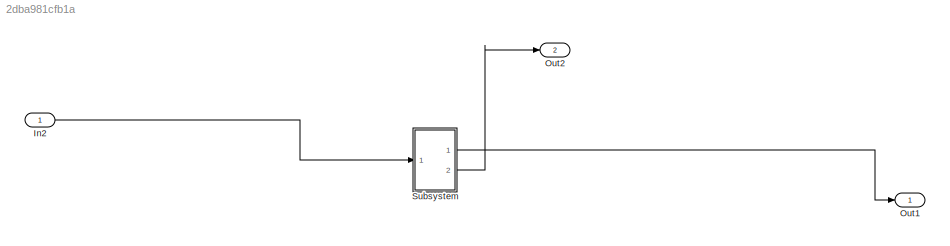
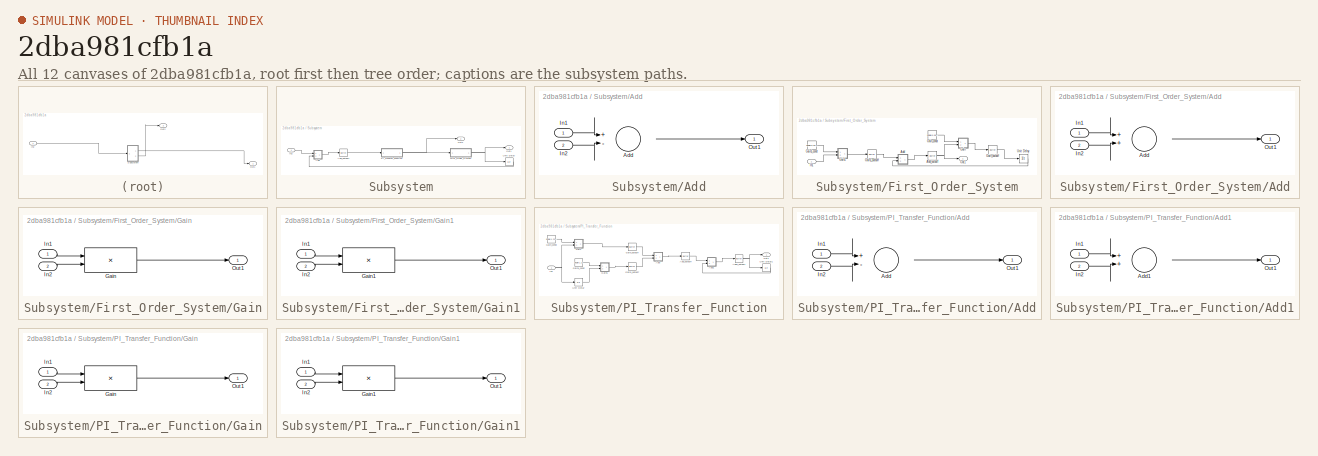
[diagram: thumbnail index - all 12 canvases of the model, root first then tree order]
MODEL slx_2dba981cfb1a
KIND model
CONFIG AbsTol = auto
CONFIG EnableMultiTasking = off
CONFIG FixedStep = auto
CONFIG MaxStep = auto
CONFIG MinStep = auto
CONFIG RelTol = 1e-3
CONFIG SampleTimeConstraint = Unconstrained
CONFIG SolverName = VariableStepAuto
CONFIG StartTime = 0.0
CONFIG StopTime = 10.0
BLOCK [Inport] In2
BLOCK [Outport] Out1
  SignalName = C
  VectorParamsAs1DForOutWhenUnconnected = off
BLOCK [Outport] Out2
  Port = 2
  SignalName = U
  VectorParamsAs1DForOutWhenUnconnected = off
BLOCK [SubSystem] Subsystem
  Ports = [1, 2]
  RequestExecContextInheritance = off
BLOCK [SubSystem] Subsystem/Add
  Ports = [2, 1]
  RequestExecContextInheritance = off
BLOCK [Sum] Subsystem/Add/Add
  Inputs = +-
  OutDataTypeStr = single
  Ports = [2, 1]
  SampleTime = 0.2
BLOCK [Inport] Subsystem/Add/In1
BLOCK [Inport] Subsystem/Add/In2
  Port = 2
BLOCK [Outport] Subsystem/Add/Out1
BLOCK [Reference] Subsystem/Add_outbuff  REF=hdlmdlgenlib/Buffer
  Ports = [1, 1]
  SourceBlock = hdlmdlgenlib/Buffer
  SourceProductBaseCode = SL
  SourceType = Buffer/Wire
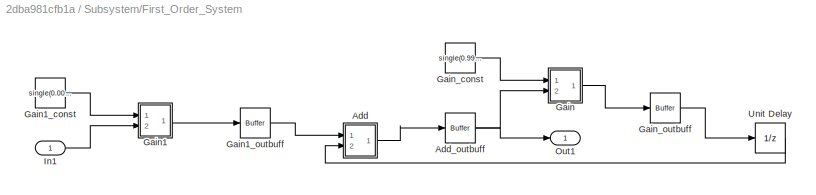
BLOCK [SubSystem] Subsystem/First_Order_System
  Ports = [1, 1]
  RequestExecContextInheritance = off
BLOCK [SubSystem] Subsystem/First_Order_System/Add
  Ports = [2, 1]
  RequestExecContextInheritance = off
BLOCK [Sum] Subsystem/First_Order_System/Add/Add
  OutDataTypeStr = single
  Ports = [2, 1]
  SampleTime = 0.2
BLOCK [Inport] Subsystem/First_Order_System/Add/In1
BLOCK [Inport] Subsystem/First_Order_System/Add/In2
  Port = 2
BLOCK [Outport] Subsystem/First_Order_System/Add/Out1
BLOCK [Reference] Subsystem/First_Order_System/Add_outbuff  REF=hdlmdlgenlib/Buffer
  Ports = [1, 1]
  SourceBlock = hdlmdlgenlib/Buffer
  SourceProductBaseCode = SL
  SourceType = Buffer/Wire
BLOCK [SubSystem] Subsystem/First_Order_System/Gain
  Ports = [2, 1]
  RequestExecContextInheritance = off
BLOCK [Product] Subsystem/First_Order_System/Gain/Gain
  Inputs = **
  OutDataTypeStr = single
  Ports = [2, 1]
  SampleTime = 0.2
BLOCK [Inport] Subsystem/First_Order_System/Gain/In1
BLOCK [Inport] Subsystem/First_Order_System/Gain/In2
  Port = 2
BLOCK [Outport] Subsystem/First_Order_System/Gain/Out1
BLOCK [SubSystem] Subsystem/First_Order_System/Gain1
  Ports = [2, 1]
  RequestExecContextInheritance = off
BLOCK [Product] Subsystem/First_Order_System/Gain1/Gain1
  Inputs = **
  OutDataTypeStr = single
  Ports = [2, 1]
  SampleTime = 0.2
BLOCK [Inport] Subsystem/First_Order_System/Gain1/In1
BLOCK [Inport] Subsystem/First_Order_System/Gain1/In2
  Port = 2
BLOCK [Outport] Subsystem/First_Order_System/Gain1/Out1
BLOCK [Constant] Subsystem/First_Order_System/Gain1_const
  OutDataTypeStr = single
  SampleTime = 0.2
  Value = single(0.009900989942252636)
BLOCK [Reference] Subsystem/First_Order_System/Gain1_outbuff  REF=hdlmdlgenlib/Buffer
  Ports = [1, 1]
  SourceBlock = hdlmdlgenlib/Buffer
  SourceProductBaseCode = SL
  SourceType = Buffer/Wire
BLOCK [Constant] Subsystem/First_Order_System/Gain_const
  OutDataTypeStr = single
  SampleTime = 0.2
  Value = single(0.9900990128517151)
BLOCK [Reference] Subsystem/First_Order_System/Gain_outbuff  REF=hdlmdlgenlib/Buffer
  Ports = [1, 1]
  SourceBlock = hdlmdlgenlib/Buffer
  SourceProductBaseCode = SL
  SourceType = Buffer/Wire
BLOCK [Inport] Subsystem/First_Order_System/In1
  OutDataTypeStr = single
  PortDimensions = 1
  SampleTime = 0.2
BLOCK [Outport] Subsystem/First_Order_System/Out1
  VectorParamsAs1DForOutWhenUnconnected = off
BLOCK [UnitDelay] Subsystem/First_Order_System/Unit Delay
  InitialCondition = single(0)
  SampleTime = 0.2
BLOCK [Inport] Subsystem/In2
  OutDataTypeStr = single
  PortDimensions = 1
  SampleTime = 0.2
BLOCK [Outport] Subsystem/Out1
  OutDataTypeStr = single
  VectorParamsAs1DForOutWhenUnconnected = off
BLOCK [Outport] Subsystem/Out2
  OutDataTypeStr = single
  Port = 2
  VectorParamsAs1DForOutWhenUnconnected = off
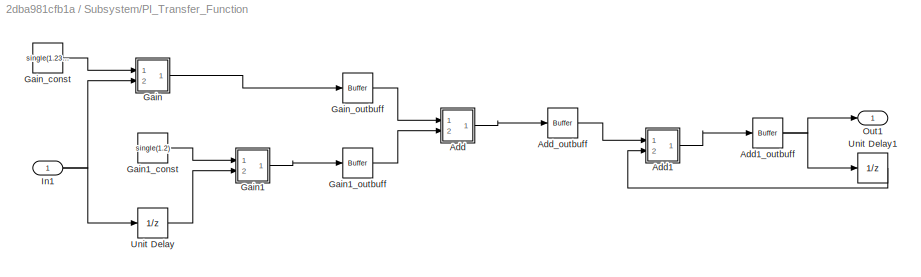
BLOCK [SubSystem] Subsystem/PI_Transfer_Function
  Ports = [1, 1]
  RequestExecContextInheritance = off
BLOCK [SubSystem] Subsystem/PI_Transfer_Function/Add
  Ports = [2, 1]
  RequestExecContextInheritance = off
BLOCK [Sum] Subsystem/PI_Transfer_Function/Add/Add
  Inputs = +-
  OutDataTypeStr = single
  Ports = [2, 1]
  SampleTime = 0.2
BLOCK [Inport] Subsystem/PI_Transfer_Function/Add/In1
BLOCK [Inport] Subsystem/PI_Transfer_Function/Add/In2
  Port = 2
BLOCK [Outport] Subsystem/PI_Transfer_Function/Add/Out1
BLOCK [SubSystem] Subsystem/PI_Transfer_Function/Add1
  Ports = [2, 1]
  RequestExecContextInheritance = off
BLOCK [Sum] Subsystem/PI_Transfer_Function/Add1/Add1
  OutDataTypeStr = single
  Ports = [2, 1]
  SampleTime = 0.2
BLOCK [Inport] Subsystem/PI_Transfer_Function/Add1/In1
BLOCK [Inport] Subsystem/PI_Transfer_Function/Add1/In2
  Port = 2
BLOCK [Outport] Subsystem/PI_Transfer_Function/Add1/Out1
BLOCK [Reference] Subsystem/PI_Transfer_Function/Add1_outbuff  REF=hdlmdlgenlib/Buffer
  Ports = [1, 1]
  SourceBlock = hdlmdlgenlib/Buffer
  SourceProductBaseCode = SL
  SourceType = Buffer/Wire
BLOCK [Reference] Subsystem/PI_Transfer_Function/Add_outbuff  REF=hdlmdlgenlib/Buffer
  Ports = [1, 1]
  SourceBlock = hdlmdlgenlib/Buffer
  SourceProductBaseCode = SL
  SourceType = Buffer/Wire
BLOCK [SubSystem] Subsystem/PI_Transfer_Function/Gain
  Ports = [2, 1]
  RequestExecContextInheritance = off
BLOCK [Product] Subsystem/PI_Transfer_Function/Gain/Gain
  Inputs = **
  OutDataTypeStr = single
  Ports = [2, 1]
  SampleTime = 0.2
BLOCK [Inport] Subsystem/PI_Transfer_Function/Gain/In1
BLOCK [Inport] Subsystem/PI_Transfer_Function/Gain/In2
  Port = 2
BLOCK [Outport] Subsystem/PI_Transfer_Function/Gain/Out1
BLOCK [SubSystem] Subsystem/PI_Transfer_Function/Gain1
  Ports = [2, 1]
  RequestExecContextInheritance = off
BLOCK [Product] Subsystem/PI_Transfer_Function/Gain1/Gain1
  Inputs = **
  OutDataTypeStr = single
  Ports = [2, 1]
  SampleTime = 0.2
BLOCK [Inport] Subsystem/PI_Transfer_Function/Gain1/In1
BLOCK [Inport] Subsystem/PI_Transfer_Function/Gain1/In2
  Port = 2
BLOCK [Outport] Subsystem/PI_Transfer_Function/Gain1/Out1
BLOCK [Constant] Subsystem/PI_Transfer_Function/Gain1_const
  OutDataTypeStr = single
  SampleTime = 0.2
  Value = single(1.2)
BLOCK [Reference] Subsystem/PI_Transfer_Function/Gain1_outbuff  REF=hdlmdlgenlib/Buffer
  Ports = [1, 1]
  SourceBlock = hdlmdlgenlib/Buffer
  SourceProductBaseCode = SL
  SourceType = Buffer/Wire
BLOCK [Constant] Subsystem/PI_Transfer_Function/Gain_const
  OutDataTypeStr = single
  SampleTime = 0.2
  Value = single(1.236)
BLOCK [Reference] Subsystem/PI_Transfer_Function/Gain_outbuff  REF=hdlmdlgenlib/Buffer
  Ports = [1, 1]
  SourceBlock = hdlmdlgenlib/Buffer
  SourceProductBaseCode = SL
  SourceType = Buffer/Wire
BLOCK [Inport] Subsystem/PI_Transfer_Function/In1
  OutDataTypeStr = single
  PortDimensions = 1
  SampleTime = 0.2
BLOCK [Outport] Subsystem/PI_Transfer_Function/Out1
  VectorParamsAs1DForOutWhenUnconnected = off
BLOCK [UnitDelay] Subsystem/PI_Transfer_Function/Unit Delay
  InitialCondition = single(0)
  SampleTime = 0.2
BLOCK [UnitDelay] Subsystem/PI_Transfer_Function/Unit Delay1
  InitialCondition = single(0)
  SampleTime = 0.2
BLOCK [UnitDelay] Subsystem/Unit Delay
  InitialCondition = single(0)
  SampleTime = 0.2
LINE In2:1 -> Subsystem:1
LINE Subsystem/Add/Add:1 -> Subsystem/Add/Out1:1
LINE Subsystem/Add/In1:1 -> Subsystem/Add/Add:1
LINE Subsystem/Add/In2:1 -> Subsystem/Add/Add:2
LINE Subsystem/Add:1 -> Subsystem/Add_outbuff:1
LINE Subsystem/Add_outbuff:1 -> Subsystem/PI_Transfer_Function:1
LINE Subsystem/First_Order_System/Add/Add:1 -> Subsystem/First_Order_System/Add/Out1:1
LINE Subsystem/First_Order_System/Add/In1:1 -> Subsystem/First_Order_System/Add/Add:1
LINE Subsystem/First_Order_System/Add/In2:1 -> Subsystem/First_Order_System/Add/Add:2
LINE Subsystem/First_Order_System/Add:1 -> Subsystem/First_Order_System/Add_outbuff:1
NET Subsystem/First_Order_System/Add_outbuff:1 -> Subsystem/First_Order_System/Gain:2, Subsystem/First_Order_System/Out1:1
LINE Subsystem/First_Order_System/Gain/Gain:1 -> Subsystem/First_Order_System/Gain/Out1:1
LINE Subsystem/First_Order_System/Gain/In1:1 -> Subsystem/First_Order_System/Gain/Gain:1
LINE Subsystem/First_Order_System/Gain/In2:1 -> Subsystem/First_Order_System/Gain/Gain:2
LINE Subsystem/First_Order_System/Gain1/Gain1:1 -> Subsystem/First_Order_System/Gain1/Out1:1
LINE Subsystem/First_Order_System/Gain1/In1:1 -> Subsystem/First_Order_System/Gain1/Gain1:1
LINE Subsystem/First_Order_System/Gain1/In2:1 -> Subsystem/First_Order_System/Gain1/Gain1:2
LINE Subsystem/First_Order_System/Gain1:1 -> Subsystem/First_Order_System/Gain1_outbuff:1
LINE Subsystem/First_Order_System/Gain1_const:1 -> Subsystem/First_Order_System/Gain1:1
LINE Subsystem/First_Order_System/Gain1_outbuff:1 -> Subsystem/First_Order_System/Add:1
LINE Subsystem/First_Order_System/Gain:1 -> Subsystem/First_Order_System/Gain_outbuff:1
LINE Subsystem/First_Order_System/Gain_const:1 -> Subsystem/First_Order_System/Gain:1
LINE Subsystem/First_Order_System/Gain_outbuff:1 -> Subsystem/First_Order_System/Unit Delay:1
LINE Subsystem/First_Order_System/In1:1 -> Subsystem/First_Order_System/Gain1:2
LINE Subsystem/First_Order_System/Unit Delay:1 -> Subsystem/First_Order_System/Add:2
NET Subsystem/First_Order_System:1 -> Subsystem/Out1:1, Subsystem/Unit Delay:1
LINE Subsystem/In2:1 -> Subsystem/Add:1
LINE Subsystem/PI_Transfer_Function/Add/Add:1 -> Subsystem/PI_Transfer_Function/Add/Out1:1
LINE Subsystem/PI_Transfer_Function/Add/In1:1 -> Subsystem/PI_Transfer_Function/Add/Add:1
LINE Subsystem/PI_Transfer_Function/Add/In2:1 -> Subsystem/PI_Transfer_Function/Add/Add:2
LINE Subsystem/PI_Transfer_Function/Add1/Add1:1 -> Subsystem/PI_Transfer_Function/Add1/Out1:1
LINE Subsystem/PI_Transfer_Function/Add1/In1:1 -> Subsystem/PI_Transfer_Function/Add1/Add1:1
LINE Subsystem/PI_Transfer_Function/Add1/In2:1 -> Subsystem/PI_Transfer_Function/Add1/Add1:2
LINE Subsystem/PI_Transfer_Function/Add1:1 -> Subsystem/PI_Transfer_Function/Add1_outbuff:1
NET Subsystem/PI_Transfer_Function/Add1_outbuff:1 -> Subsystem/PI_Transfer_Function/Out1:1, Subsystem/PI_Transfer_Function/Unit Delay1:1
LINE Subsystem/PI_Transfer_Function/Add:1 -> Subsystem/PI_Transfer_Function/Add_outbuff:1
LINE Subsystem/PI_Transfer_Function/Add_outbuff:1 -> Subsystem/PI_Transfer_Function/Add1:1
LINE Subsystem/PI_Transfer_Function/Gain/Gain:1 -> Subsystem/PI_Transfer_Function/Gain/Out1:1
LINE Subsystem/PI_Transfer_Function/Gain/In1:1 -> Subsystem/PI_Transfer_Function/Gain/Gain:1
LINE Subsystem/PI_Transfer_Function/Gain/In2:1 -> Subsystem/PI_Transfer_Function/Gain/Gain:2
LINE Subsystem/PI_Transfer_Function/Gain1/Gain1:1 -> Subsystem/PI_Transfer_Function/Gain1/Out1:1
LINE Subsystem/PI_Transfer_Function/Gain1/In1:1 -> Subsystem/PI_Transfer_Function/Gain1/Gain1:1
LINE Subsystem/PI_Transfer_Function/Gain1/In2:1 -> Subsystem/PI_Transfer_Function/Gain1/Gain1:2
LINE Subsystem/PI_Transfer_Function/Gain1:1 -> Subsystem/PI_Transfer_Function/Gain1_outbuff:1
LINE Subsystem/PI_Transfer_Function/Gain1_const:1 -> Subsystem/PI_Transfer_Function/Gain1:1
LINE Subsystem/PI_Transfer_Function/Gain1_outbuff:1 -> Subsystem/PI_Transfer_Function/Add:2
LINE Subsystem/PI_Transfer_Function/Gain:1 -> Subsystem/PI_Transfer_Function/Gain_outbuff:1
LINE Subsystem/PI_Transfer_Function/Gain_const:1 -> Subsystem/PI_Transfer_Function/Gain:1
LINE Subsystem/PI_Transfer_Function/Gain_outbuff:1 -> Subsystem/PI_Transfer_Function/Add:1
NET Subsystem/PI_Transfer_Function/In1:1 -> Subsystem/PI_Transfer_Function/Gain:2, Subsystem/PI_Transfer_Function/Unit Delay:1
LINE Subsystem/PI_Transfer_Function/Unit Delay1:1 -> Subsystem/PI_Transfer_Function/Add1:2
LINE Subsystem/PI_Transfer_Function/Unit Delay:1 -> Subsystem/PI_Transfer_Function/Gain1:2
NET Subsystem/PI_Transfer_Function:1 -> Subsystem/First_Order_System:1, Subsystem/Out2:1
LINE Subsystem/Unit Delay:1 -> Subsystem/Add:2
LINE Subsystem:1 -> Out1:1
LINE Subsystem:2 -> Out2:1
note: NET lines group one-source signal fan-out (src -> all destinations, sorted); 1:1 wires keep LINE
